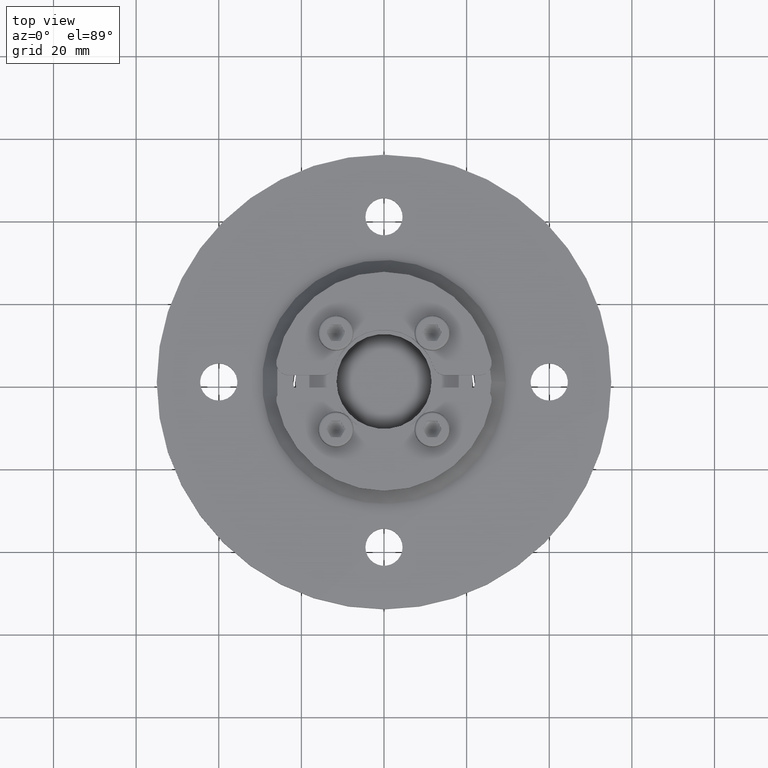
[diagram: clean part render]
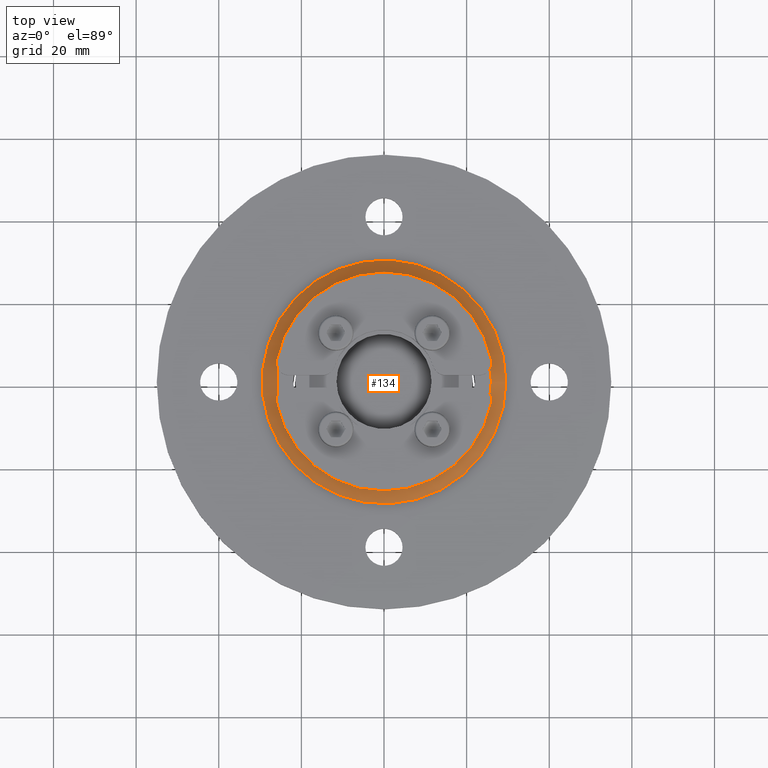
[diagram: same view with one face highlighted and labeled with its STEP entity id]
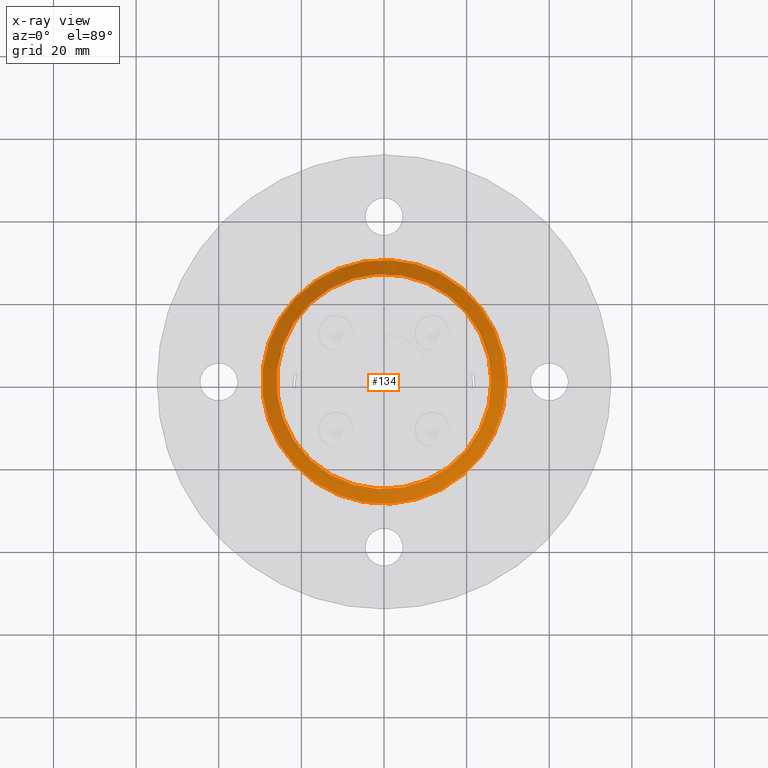
[diagram: x-ray of the same camera — body ghosted, the highlighted face saturated]
A machine part, top view. The second image highlights one B-rep face of the part: STEP entity #134.
The next image is the same camera in x-ray: the body ghosted, the highlighted face saturated — about 0% of this face is hidden behind the body in this view.
In plain terms, the highlighted conical surface has half-angle 45 deg.
Its self-contained STEP definition (entity closure, byte-faithful):
#107=CARTESIAN_POINT('',(0.0,0.0,-4.250000000000002));
#108=DIRECTION('',(0.0,0.0,-1.0));
#109=DIRECTION('',(-1.0,0.0,0.0));
#110=AXIS2_PLACEMENT_3D('',#107,#108,#109);
#111=CONICAL_SURFACE('',#110,27.750000000000004,44.999999999999993);
#112=CARTESIAN_POINT('',(29.5,3.612708E-015,-6.000000000000002));
#113=VERTEX_POINT('',#112);
#114=CARTESIAN_POINT('',(0.0,0.0,-6.000000000000002));
#115=DIRECTION('',(0.0,0.0,1.0));
#116=DIRECTION('',(-1.0,0.0,0.0));
#117=AXIS2_PLACEMENT_3D('',#114,#115,#116);
#118=CIRCLE('',#117,29.5);
#119=EDGE_CURVE('',#113,#113,#118,.T.);
#120=ORIENTED_EDGE('',*,*,#119,.T.);
#121=EDGE_LOOP('',(#120));
#122=FACE_OUTER_BOUND('',#121,.T.);
#123=CARTESIAN_POINT('',(26.0,-3.184082E-015,-2.500000000000002));
#124=VERTEX_POINT('',#123);
#125=CARTESIAN_POINT('',(0.0,0.0,-2.500000000000002));
#126=DIRECTION('',(0.0,0.0,-1.0));
#127=DIRECTION('',(-1.0,0.0,0.0));
#128=AXIS2_PLACEMENT_3D('',#125,#126,#127);
#129=CIRCLE('',#128,26.0);
#130=EDGE_CURVE('',#124,#124,#129,.T.);
#131=ORIENTED_EDGE('',*,*,#130,.T.);
#132=EDGE_LOOP('',(#131));
#133=FACE_BOUND('',#132,.T.);
#134=ADVANCED_FACE('',(#122,#133),#111,.T.);